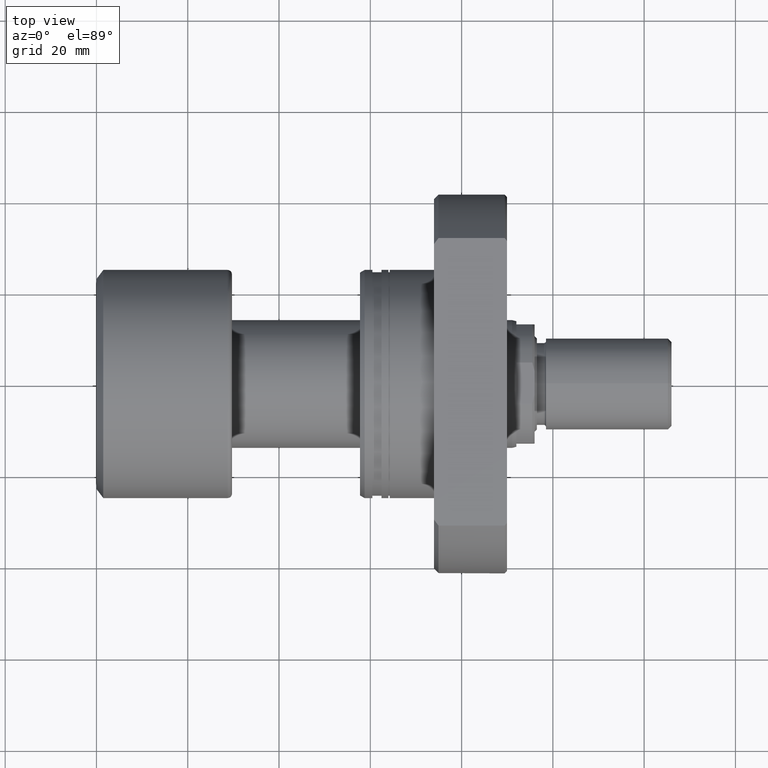
[diagram: clean part render]
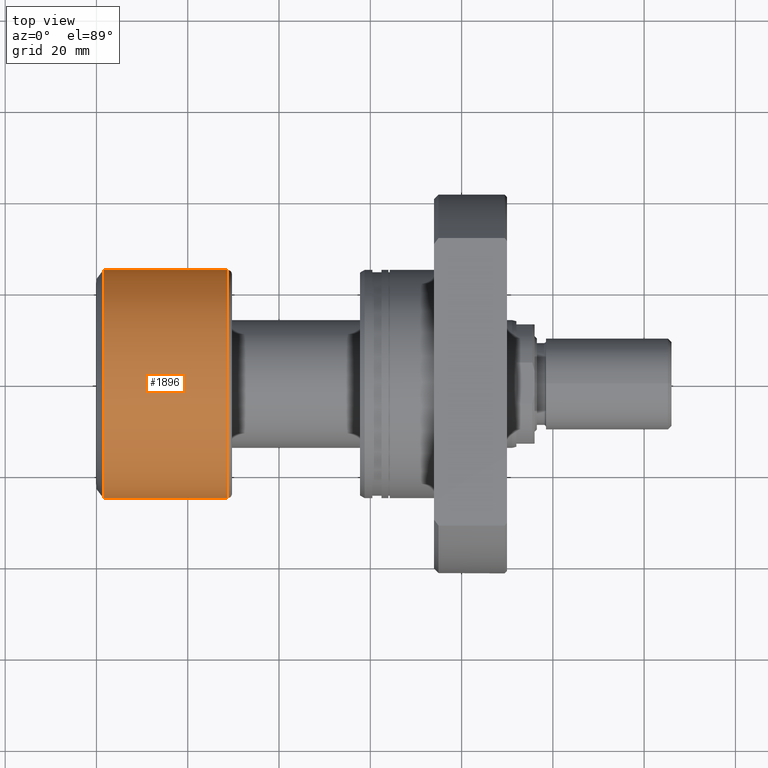
[diagram: same view with one face highlighted and labeled with its STEP entity id]
A machine part, top view. The second image highlights one B-rep face of the part: STEP entity #1896.
In plain terms, the highlighted cylindrical surface (partial cylindrical patch) has radius 25 mm, axis along (-1, -0, -0).
Its self-contained STEP definition (entity closure, byte-faithful):
#358 = VECTOR ( 'NONE', #1857, 1000.000000000000000 ) ;
#436 = AXIS2_PLACEMENT_3D ( 'NONE', #3410, #1689, #870 ) ;
#731 = LINE ( 'NONE', #1612, #358 ) ;
#811 = DIRECTION ( 'NONE',  ( -1.000000000000000000, -1.069542322069065801E-17, -0.000000000000000000 ) ) ;
#830 = DIRECTION ( 'NONE',  ( 0.000000000000000000, -1.000000000000000000, 0.000000000000000000 ) ) ;
#836 = VERTEX_POINT ( 'NONE', #2963 ) ;
#870 = DIRECTION ( 'NONE',  ( 8.673617379884035472E-18, -1.000000000000000000, 0.000000000000000000 ) ) ;
#1067 = DIRECTION ( 'NONE',  ( 1.069542322069065955E-17, -1.000000000000000000, 0.000000000000000000 ) ) ;
#1088 = ORIENTED_EDGE ( 'NONE', *, *, #2819, .T. ) ;
#1282 = ORIENTED_EDGE ( 'NONE', *, *, #2392, .F. ) ;
#1310 = EDGE_CURVE ( 'NONE', #836, #3252, #731, .T. ) ;
#1320 = FACE_OUTER_BOUND ( 'NONE', #2983, .T. ) ;
#1428 = AXIS2_PLACEMENT_3D ( 'NONE', #2796, #1947, #830 ) ;
#1532 = CARTESIAN_POINT ( 'NONE',  ( 1.500000000000002887, 25.00000000000000000, 0.000000000000000000 ) ) ;
#1612 = CARTESIAN_POINT ( 'NONE',  ( -2.673855805172664980E-16, 25.00000000000000000, 3.061616997868383043E-15 ) ) ;
#1689 = DIRECTION ( 'NONE',  ( -1.000000000000000000, -1.069542322069065801E-17, -0.000000000000000000 ) ) ;
#1698 = VERTEX_POINT ( 'NONE', #2040 ) ;
#1786 = VECTOR ( 'NONE', #3097, 1000.000000000000000 ) ;
#1857 = DIRECTION ( 'NONE',  ( -1.000000000000000000, -1.069542322069065801E-17, -0.000000000000000000 ) ) ;
#1896 = ADVANCED_FACE ( 'NONE', ( #1320 ), #2509, .T. ) ;
#1947 = DIRECTION ( 'NONE',  ( -1.000000000000000000, -1.069542322069065801E-17, -0.000000000000000000 ) ) ;
#2040 = CARTESIAN_POINT ( 'NONE',  ( 28.69999999999999574, -25.00000000000000000, 0.000000000000000000 ) ) ;
#2202 = CIRCLE ( 'NONE', #436, 25.00000000000000000 ) ;
#2250 = VERTEX_POINT ( 'NONE', #3005 ) ;
#2256 = ORIENTED_EDGE ( 'NONE', *, *, #1310, .T. ) ;
#2392 = EDGE_CURVE ( 'NONE', #1698, #2250, #3343, .T. ) ;
#2509 = CYLINDRICAL_SURFACE ( 'NONE', #2898, 25.00000000000000000 ) ;
#2608 = ORIENTED_EDGE ( 'NONE', *, *, #2920, .F. ) ;
#2793 = CIRCLE ( 'NONE', #1428, 25.00000000000000000 ) ;
#2796 = CARTESIAN_POINT ( 'NONE',  ( 28.69999999999999574, 3.069586464338218566E-16, 0.000000000000000000 ) ) ;
#2819 = EDGE_CURVE ( 'NONE', #1698, #836, #2793, .T. ) ;
#2898 = AXIS2_PLACEMENT_3D ( 'NONE', #3350, #811, #1067 ) ;
#2920 = EDGE_CURVE ( 'NONE', #2250, #3252, #2202, .T. ) ;
#2963 = CARTESIAN_POINT ( 'NONE',  ( 28.69999999999999574, 25.00000000000000000, 3.061616997868383043E-15 ) ) ;
#2983 = EDGE_LOOP ( 'NONE', ( #1088, #2256, #2608, #1282 ) ) ;
#3005 = CARTESIAN_POINT ( 'NONE',  ( 1.500000000000003331, -25.00000000000000000, 3.061616997868383043E-15 ) ) ;
#3097 = DIRECTION ( 'NONE',  ( -1.000000000000000000, -1.069542322069065801E-17, -0.000000000000000000 ) ) ;
#3252 = VERTEX_POINT ( 'NONE', #1532 ) ;
#3343 = LINE ( 'NONE', #3398, #1786 ) ;
#3350 = CARTESIAN_POINT ( 'NONE',  ( 0.000000000000000000, 0.000000000000000000, 0.000000000000000000 ) ) ;
#3398 = CARTESIAN_POINT ( 'NONE',  ( 2.673855805172664980E-16, -25.00000000000000000, 0.000000000000000000 ) ) ;
#3410 = CARTESIAN_POINT ( 'NONE',  ( 1.500000000000003109, 1.604313483103602168E-17, 0.000000000000000000 ) ) ;